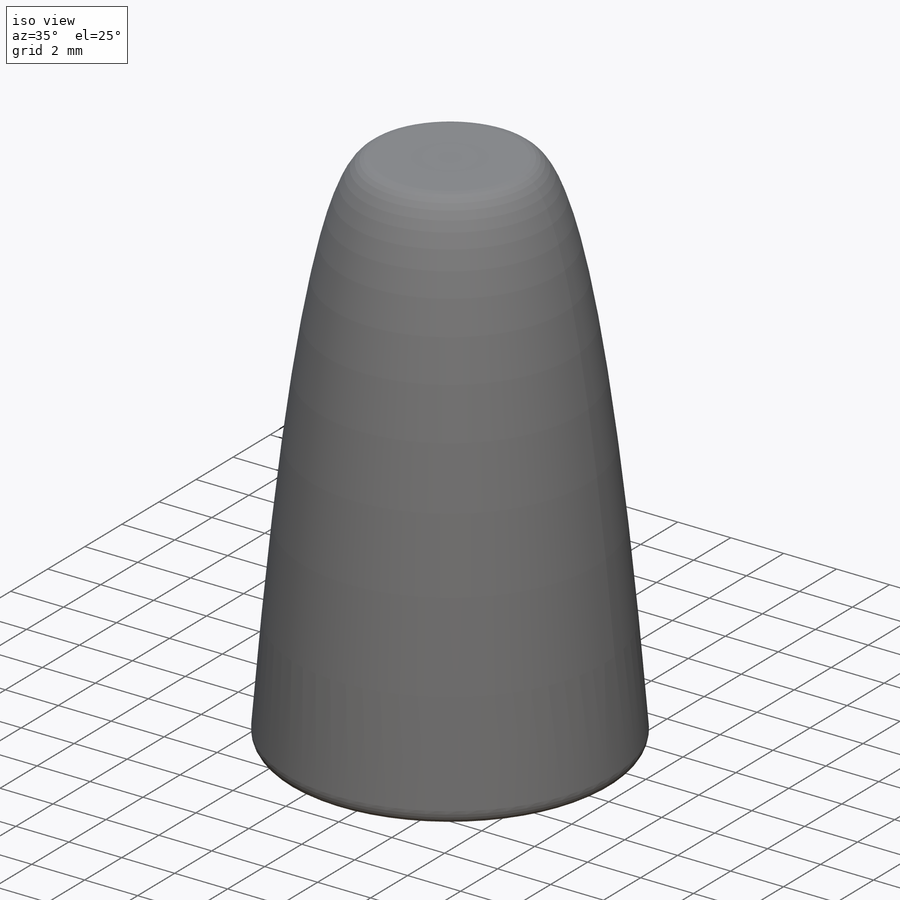
[diagram: iso view]
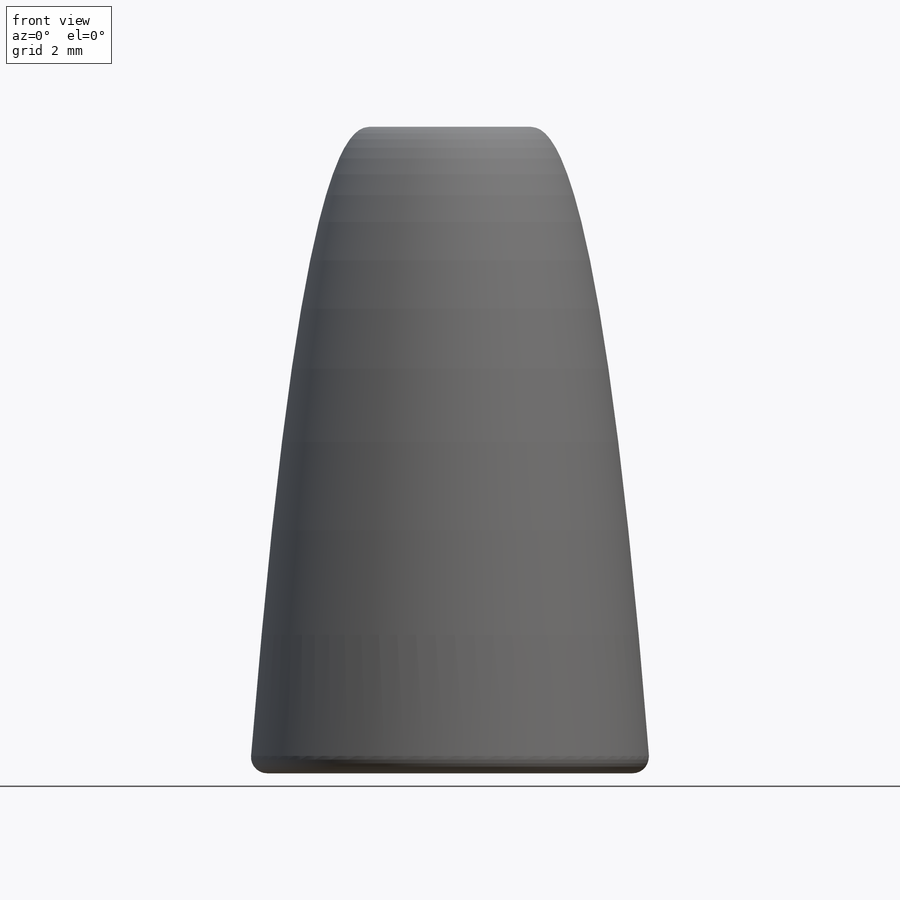
[diagram: front view]
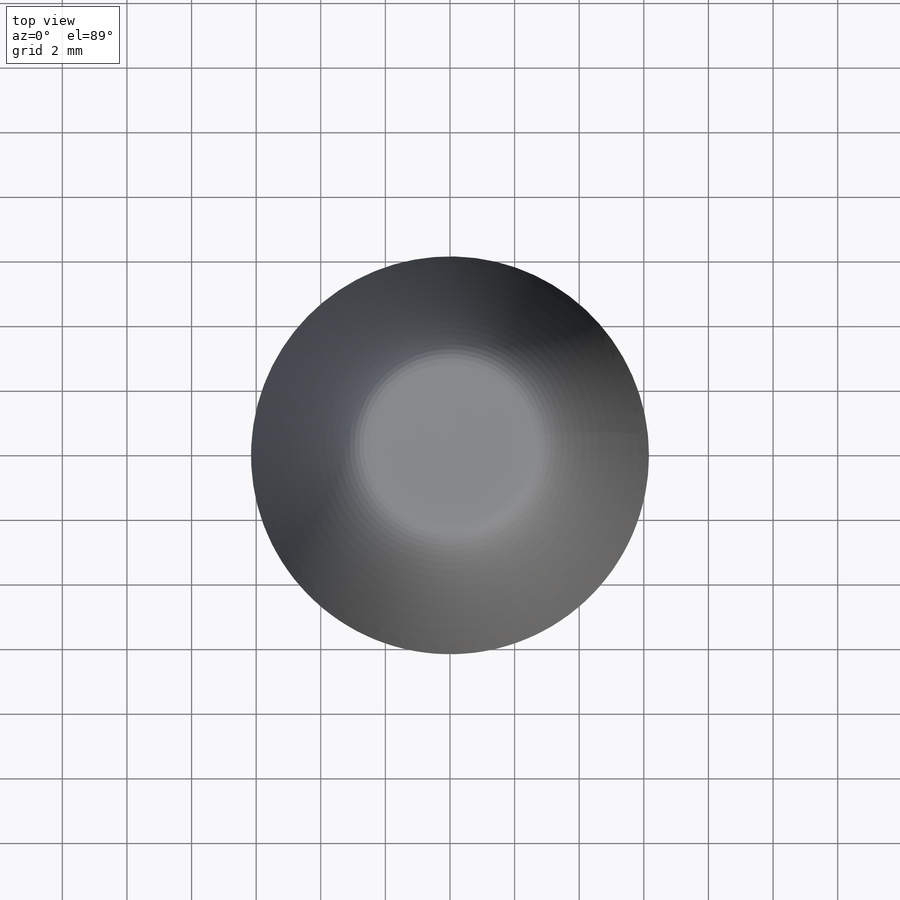
[diagram: top view]
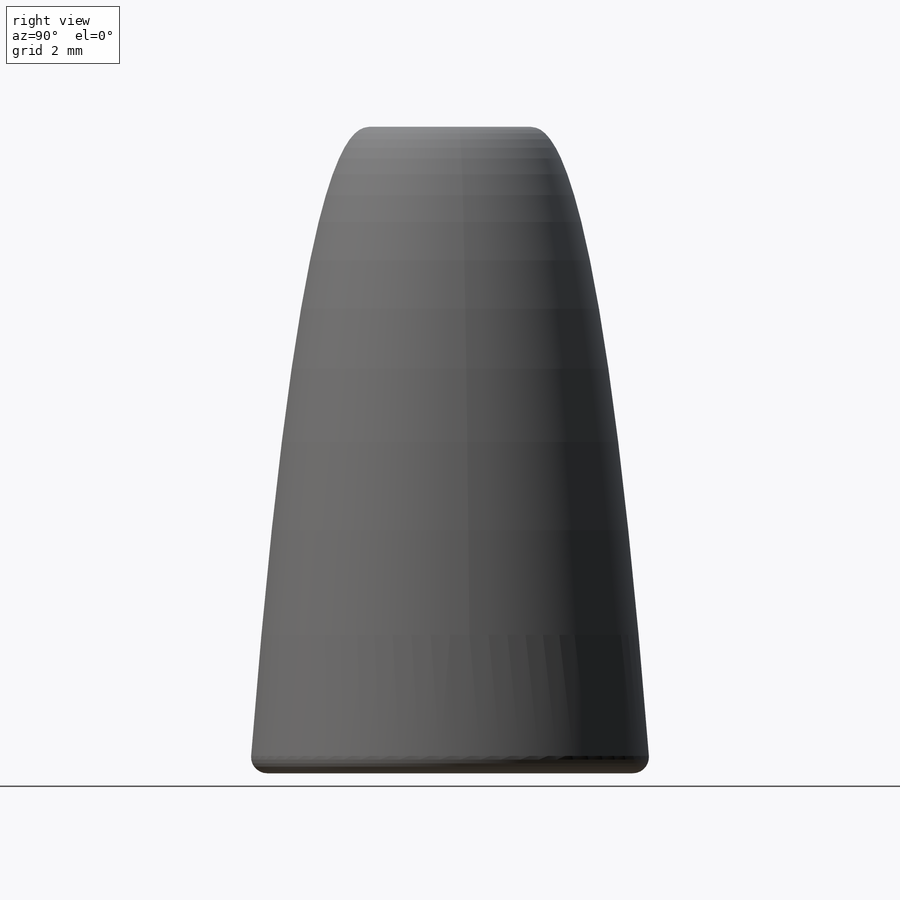
[diagram: right view]
SOLIDWORKS PART (.sldprt)
format: sldprt  version: not decoded by parser v0  size: 158,720 bytes
history: native  units: mm
features: plane x3, sketch x2, material x1, revolve x1, fillet x1, cut_extrude x1 (+13 scaffold rows collapsed)
feature tree (22):
  scaffold x13  (default folders/planes/origin — collapsed)
  material  "BUTYL"
  plane  "Plano frontal"
  plane  "Plano superior"
  plane  "Plano direito"
  sketch  "Esboço1"  dims[D4=0.5mm D5=1.0mm D1=20.0mm D2=6.2mm D3=2.8mm]
  revolve  "Revolução1"  Angle=360deg
  fillet  "Filete1"  Radius=0.5mm
  sketch  "Esboço2"  dims[D1=~0.933984mm]
  cut_extrude  "Corte-extrusão1"  Depth=5mm
decode coverage: 5 of 5 modeling features carry decoded parameters
note: ~ marks probable driven/reference dimensions
note: suppression state not decoded; provenance and decode notes live in map.json
